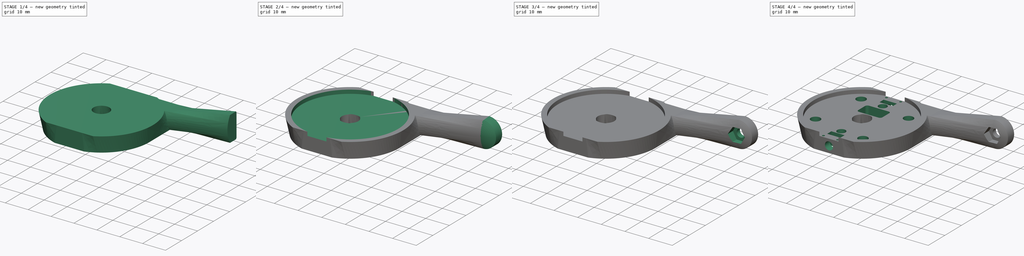
[diagram: build sequence overview — one tinted view per stage of 4, left to right]
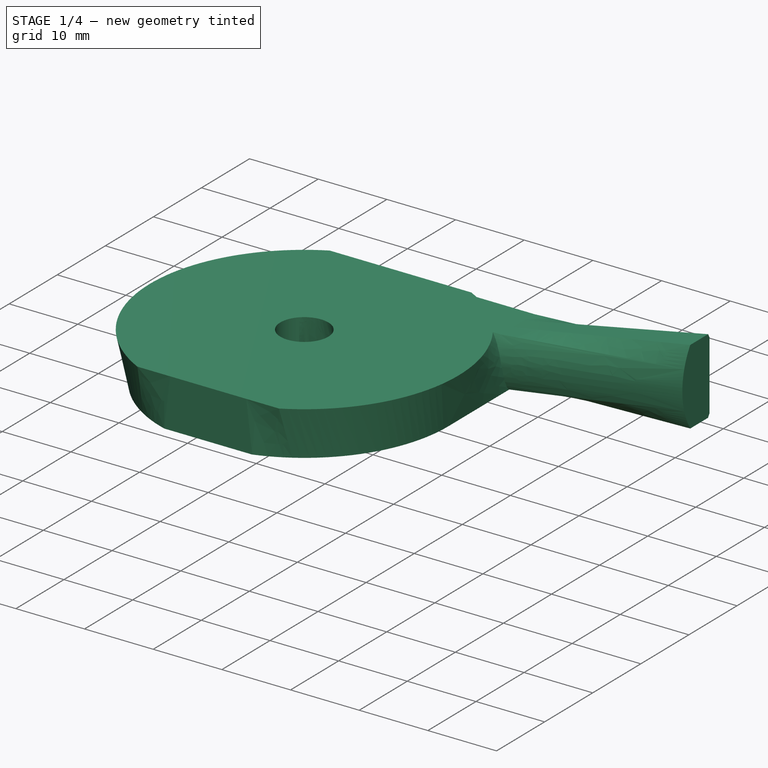
[diagram: stage 1 of 4 — iso view after this stage's code; geometry added in this stage tinted green]
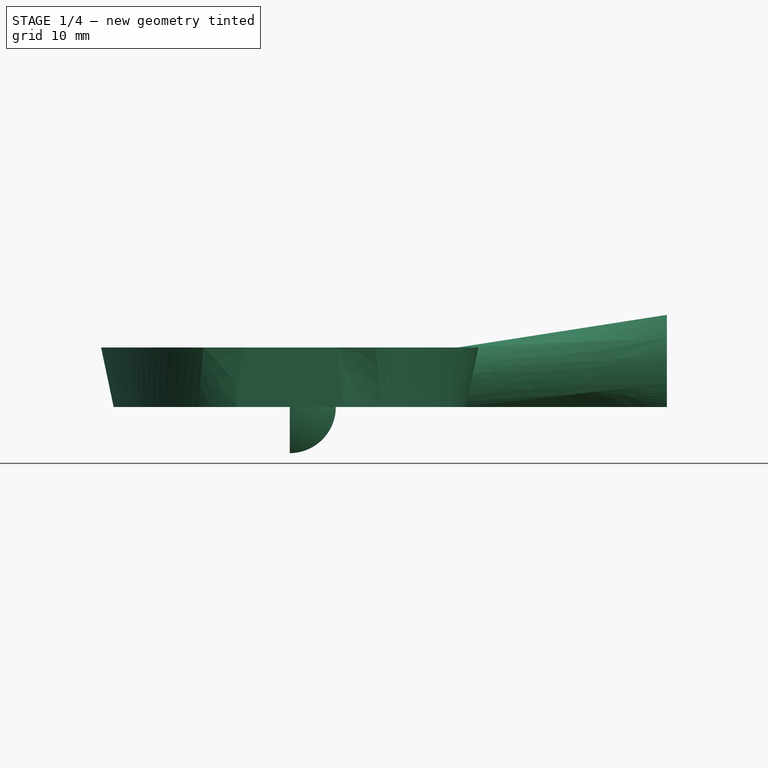
[diagram: stage 1 of 4 — front view after this stage's code; geometry added in this stage tinted green]
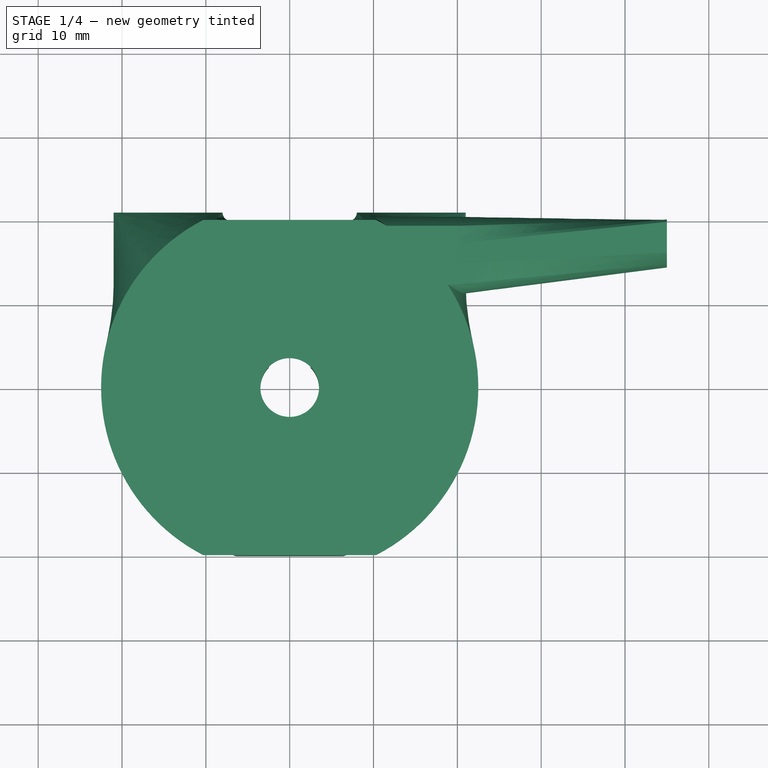
[diagram: stage 1 of 4 — top view after this stage's code; geometry added in this stage tinted green]
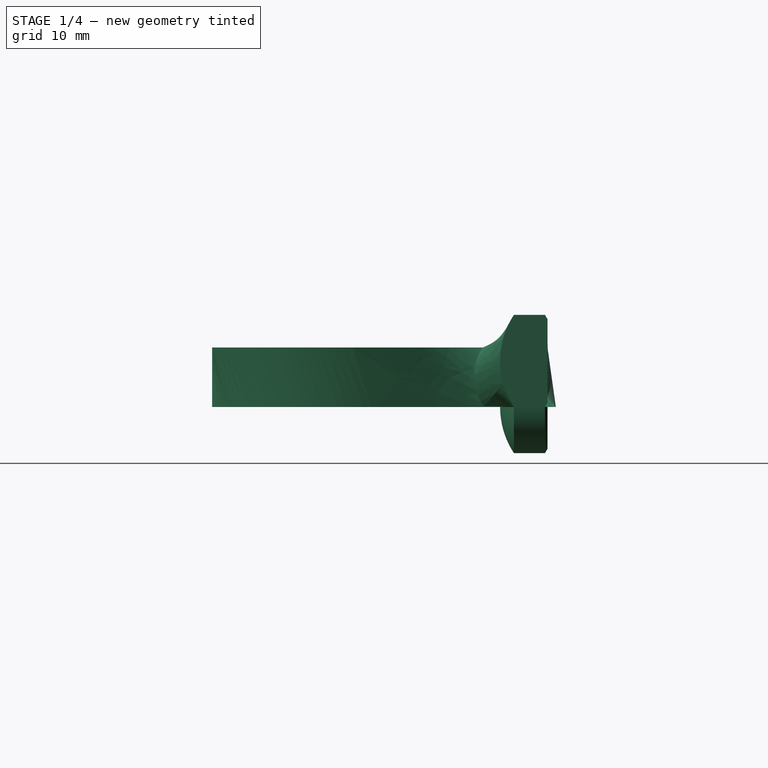
[diagram: stage 1 of 4 — right view after this stage's code; geometry added in this stage tinted green]
FCSTD DOCUMENT  (FreeCAD 0.18R16093 (Git))
Label: AnotherTryPCB
License: All rights reserved
LicenseURL: http://en.wikipedia.org/wiki/All_rights_reserved
objects: Sketcher::SketchObject×13, PartDesign::Pocket×8, PartDesign::Body×5, PartDesign::AdditiveLoft×2, PartDesign::Plane×1, PartDesign::Pad×1, PartDesign::Revolution×1, Part::MultiFuse×1, PartDesign::FeatureBase×1
note: 45 computed .brp shape members not serialized (recipe doc carries the construction recipe); baked Part::Feature solids carry a one-line shape summary decoded from their .brp

FEATURE [PartDesign::Plane] DatumPlane
  AttachmentOffset = pos=(0,0,7.1) rot=(0,0,1;0rad)
  Length = 53.5547
  MapMode = 5
  Placement = pos=(0,0,7.1) rot=(0,0,1;0rad)
  ResizeMode = 0
  Support = -> [XY_Plane]
  Width = 49.5876
FEATURE [Sketcher::SketchObject] Sketch001
  MapMode = 5
  Placement = pos=(0,0,7.1) rot=(0,0,1;0rad)
  Support = -> [DatumPlane]
  sketch-geometry (5):
    g0: LineSegment StartX=-10.3078 StartY=20 StartZ=0 EndX=10.3078 EndY=20 EndZ=0
    g1: ArcOfCircle CenterX=0 CenterY=0 CenterZ=0 NormalX=0 NormalY=0 NormalZ=1 AngleXU=0 Radius=22.5 StartAngle=2.04668 EndAngle=4.23651
    g2: ArcOfCircle CenterX=0 CenterY=0 CenterZ=0 NormalX=0 NormalY=0 NormalZ=1 AngleXU=0 Radius=22.5 StartAngle=5.18827 EndAngle=7.3781
    g3: LineSegment StartX=-10.3078 StartY=-20 StartZ=0 EndX=10.3078 EndY=-20 EndZ=0
    g4: Circle CenterX=0 CenterY=0 CenterZ=0 NormalX=0 NormalY=0 NormalZ=1 AngleXU=0 Radius=3.5
  constraints (14):
    c: Horizontal(g0)
    c: Coincident(g1,g-1)
    c: Coincident(g1,g0)
    c: Coincident(g2,g1)
    c: Coincident(g2,g0)
    c: Equal(g1,g2)
    c: Radius(g2) = 22.5
    c: DistanceY(g1,g0) = 20
    c: Coincident(g3,g1)
    c: Coincident(g3,g2)
    c: Horizontal(g3)
    c: DistanceY(g1,g1) = 20
    c: Coincident(g4,g1)
    c: Radius(g4) = 3.5
FEATURE [Sketcher::SketchObject] Sketch005
  MapMode = 5
  sketch-geometry (22):
    g0: LineSegment StartX=-7 StartY=20 StartZ=0 EndX=7 EndY=20 EndZ=0
    g1: LineSegment StartX=-6.40312 StartY=-20 StartZ=0 EndX=6.40312 EndY=-20 EndZ=0
    g2: LineSegment StartX=-2 StartY=4 StartZ=0 EndX=2 EndY=4 EndZ=0
    g3: LineSegment StartX=-2 StartY=-4 StartZ=0 EndX=2 EndY=-4 EndZ=0
    g4: ArcOfCircle CenterX=2 CenterY=-3.5 CenterZ=0 NormalX=0 NormalY=0 NormalZ=1 AngleXU=0 Radius=0.5 StartAngle=4.71239 EndAngle=6.28319
    g5: ArcOfCircle CenterX=-2 CenterY=-3.5 CenterZ=0 NormalX=0 NormalY=0 NormalZ=1 AngleXU=0 Radius=0.5 StartAngle=3.14159 EndAngle=4.71239
    g6: ArcOfCircle CenterX=-2 CenterY=3.5 CenterZ=0 NormalX=0 NormalY=0 NormalZ=1 AngleXU=0 Radius=0.5 StartAngle=1.5708 EndAngle=3.14159
    g7: ArcOfCircle CenterX=2 CenterY=3.5 CenterZ=0 NormalX=0 NormalY=0 NormalZ=1 AngleXU=0 Radius=0.5 StartAngle=3e-16 EndAngle=1.5708
    g8: LineSegment StartX=-2.5 StartY=3.5 StartZ=0 EndX=-2.5 EndY=2.44949 EndZ=0
    g9: LineSegment StartX=2.5 StartY=3.5 StartZ=0 EndX=2.5 EndY=2.44949 EndZ=0
    g10: LineSegment StartX=2.5 StartY=-3.5 StartZ=0 EndX=2.5 EndY=-2.44949 EndZ=0
    g11: LineSegment StartX=-2.5 StartY=-3.5 StartZ=0 EndX=-2.5 EndY=-2.44949 EndZ=0
    g12: ArcOfCircle CenterX=0 CenterY=0 CenterZ=0 NormalX=0 NormalY=0 NormalZ=1 AngleXU=0 Radius=3.5 StartAngle=2.3664 EndAngle=3.91679
    g13: ArcOfCircle CenterX=1e-16 CenterY=0 CenterZ=0 NormalX=0 NormalY=0 NormalZ=1 AngleXU=0 Radius=3.5 StartAngle=5.50799 EndAngle=7.05838
    g14: ArcOfCircle CenterX=-7 CenterY=21 CenterZ=0 NormalX=0 NormalY=0 NormalZ=1 AngleXU=0 Radius=1 StartAngle=3.14159 EndAngle=4.71239
    g15: LineSegment StartX=-8 StartY=21 StartZ=0 EndX=-21 EndY=21 EndZ=0
    g16: LineSegment StartX=-21 StartY=21 StartZ=0 EndX=-21 EndY=3.6e-15 EndZ=0
    g17: LineSegment StartX=8 StartY=21 StartZ=0 EndX=21 EndY=21 EndZ=0
    g18: LineSegment StartX=21 StartY=21 StartZ=0 EndX=21 EndY=0 EndZ=0
    g19: ArcOfCircle CenterX=0 CenterY=0 CenterZ=0 NormalX=0 NormalY=0 NormalZ=1 AngleXU=0 Radius=21 StartAngle=3.14159 EndAngle=4.40254
    g20: ArcOfCircle CenterX=0 CenterY=0 CenterZ=0 NormalX=0 NormalY=0 NormalZ=1 AngleXU=0 Radius=21 StartAngle=5.02223 EndAngle=6.28319
    g21: ArcOfCircle CenterX=7 CenterY=21 CenterZ=0 NormalX=0 NormalY=0 NormalZ=1 AngleXU=0 Radius=1 StartAngle=4.71239 EndAngle=6.28319
  constraints (59):
    c: Horizontal(g1)
    c: Tangent(g7,g2) = 1.5708
    c: Tangent(g4,g3) = -1.5708
    c: Tangent(g3,g5) = -1.5708
    c: Tangent(g2,g6) = 1.5708
    c: Equal(g7,g6)
    c: Equal(g6,g4)
    c: Equal(g4,g5)
    c: Radius(g7) = 0.5
    c: Symmetric(g2,g3,g-1)
    c: DistanceY(g3,g2) = 8
    c: Vertical(g8)
    c: Vertical(g10)
    c: DistanceX(g6,g7) = 5
    c: Coincident(g12,g8)
    c: Coincident(g13,g9)
    c: Coincident(g10,g13)
    c: Coincident(g11,g12)
    c: Equal(g12,g13)
    c: Radius(g12) = 3.5
    c: Tangent(g8,g6) = -1.5708
    c: Tangent(g9,g7) = 1.5708
    c: Tangent(g11,g5) = 1.5708
    c: Symmetric(g9,g10,g-1)
    c: Symmetric(g8,g11,g-1)
    c: Symmetric(g6,g7,g-2)
    c: Symmetric(g4,g5,g-2)
    c: Symmetric(g11,g10,g-2)
    c: Equal(g11,g10)
    c: Equal(g10,g9)
    c: Equal(g9,g8)
    c: DistanceX(g0,g0) = 14
    c: Symmetric(g0,g0,g-2)
    c: Radius(g14) = 1
    c: Coincident(g15,g14)
    c: Horizontal(g15)
    c: Coincident(g16,g15)
    c: PointOnObject(g16,g-1)
    c: Vertical(g16)
    c: Horizontal(g17)
    c: Coincident(g18,g17)
    c: PointOnObject(g18,g-1)
    c: Vertical(g18)
    c: Coincident(g19,g12)
    c: Coincident(g19,g16)
    c: Coincident(g19,g1)
    c: Coincident(g20,g12)
    c: Coincident(g20,g18)
    c: Coincident(g20,g1)
    c: Radius(g20) = 21
    c: Equal(g20,g19)
    c: Coincident(g12,g-1)
    c: DistanceY(g1,g12) = 20
    c: Perpendicular(g14,g15)
    c: Tangent(g14,g0) = -1.5708
    c: DistanceY(g16,g16) = 21
    c: Perpendicular(g21,g17) = 4.71239
    c: Tangent(g21,g0) = -1.5708
    c: Equal(g21,g14)
FEATURE [PartDesign::AdditiveLoft] AdditiveLoft
  Closed = false
  Placement = pos=(0,0,7.1) rot=(0,0,1;0rad)
  Profile = -> Sketch001
  Ruled = false
  Sections = -> [Sketch005]
FEATURE [PartDesign::Body] Body
  Group = -> [DatumPlane,Sketch001,Sketch005,AdditiveLoft]
  Origin = -> Origin
  Tip = -> AdditiveLoft
FEATURE [Sketcher::SketchObject] Sketch009
  MapMode = 5
  Placement = pos=(20,0,0) rot=(0.57735,0.57735,0.57735;2.0944rad)
  sketch-geometry (6):
    g0: LineSegment [constr] StartX=15.8 StartY=7.1 StartZ=0 EndX=15.8 EndY=0 EndZ=0
    g1: LineSegment [constr] StartX=14.3 StartY=3.55 StartZ=0 EndX=17.3 EndY=3.55 EndZ=0
    g2: LineSegment StartX=12.3 StartY=7.1 StartZ=0 EndX=19.3 EndY=7.1 EndZ=0
    g3: LineSegment StartX=12.3 StartY=-2.2e-15 StartZ=0 EndX=19.3 EndY=-2.2e-15 EndZ=0
    g4: ArcOfCircle CenterX=17.3 CenterY=3.55 CenterZ=0 NormalX=0 NormalY=0 NormalZ=1 AngleXU=0 Radius=6.13209 StartAngle=2.52419 EndAngle=3.759
    g5: ArcOfCircle CenterX=14.3 CenterY=3.55 CenterZ=0 NormalX=0 NormalY=0 NormalZ=1 AngleXU=0 Radius=6.13209 StartAngle=5.66578 EndAngle=6.90059
  constraints (18):
    c: Vertical(g0)
    c: Symmetric(g0,g0,g1)
    c: Symmetric(g1,g1,g0)
    c: DistanceY(g0,g0) = 7.1
    c: PointOnObject(g0,g-1)
    c: PointOnObject(g3,g-1)
    c: Horizontal(g3)
    c: PointOnObject(g0,g2)
    c: Coincident(g4,g1)
    c: Coincident(g4,g2)
    c: Coincident(g4,g3)
    c: Coincident(g5,g1)
    c: Coincident(g5,g2)
    c: Coincident(g5,g3)
    c: Symmetric(g2,g2,g0)
    c: DistanceX(g2,g2) = 7
    c: DistanceX(g-1,g0) = 15.8
    c: DistanceX(g5,g4) = 3
FEATURE [Sketcher::SketchObject] Sketch010
  MapMode = 5
  Placement = pos=(45,0,0) rot=(0.57735,0.57735,0.57735;2.0944rad)
  sketch-geometry (8):
    g0: LineSegment [constr] StartX=17.85 StartY=11 StartZ=0 EndX=17.85 EndY=0 EndZ=0
    g1: LineSegment [constr] StartX=11.3484 StartY=5.5 StartZ=0 EndX=24.3516 EndY=5.5 EndZ=0
    g2: LineSegment StartX=16 StartY=11 StartZ=0 EndX=19.7 EndY=11 EndZ=0
    g3: LineSegment StartX=16 StartY=1.8e-15 StartZ=0 EndX=19.7 EndY=-3.3e-15 EndZ=0
    g4: ArcOfCircle CenterX=24.3516 CenterY=5.5 CenterZ=0 NormalX=0 NormalY=0 NormalZ=1 AngleXU=0 Radius=10 StartAngle=2.55923 EndAngle=3.72396
    g5: LineSegment StartX=20 StartY=10.5 StartZ=0 EndX=20 EndY=0.5 EndZ=0
    g6: LineSegment StartX=19.7 StartY=11 StartZ=0 EndX=20 EndY=10.5 EndZ=0
    g7: LineSegment StartX=20 StartY=0.5 StartZ=0 EndX=19.7 EndY=-3.3e-15 EndZ=0
  constraints (22):
    c: Vertical(g0)
    c: Symmetric(g0,g0,g1)
    c: Symmetric(g1,g1,g0)
    c: DistanceY(g0,g0) = 11
    c: PointOnObject(g0,g-1)
    c: PointOnObject(g3,g-1)
    c: Coincident(g4,g1)
    c: Coincident(g4,g2)
    c: Coincident(g4,g3)
    c: Horizontal(g2)
    c: Radius(g4) = 10
    c: DistanceX(g-1,g5) = 20
    c: DistanceX(g2,g5) = 4
    c: Symmetric(g2,g2,g0)
    c: Coincident(g6,g2)
    c: Coincident(g6,g5)
    c: Coincident(g7,g5)
    c: Coincident(g7,g3)
    c: DistanceX(g2,g5) = 0.3
    c: DistanceY(g5,g2) = 0.5
    c: Symmetric(g5,g5,g1)
    c: Symmetric(g2,g3,g1)
FEATURE [PartDesign::AdditiveLoft] AdditiveLoft003
  Closed = false
  Placement = pos=(20,0,0) rot=(0.57735,0.57735,0.57735;2.0944rad)
  Profile = -> Sketch009
  Ruled = false
  Sections = -> [Sketch010]
FEATURE [PartDesign::Pad] Pad
  BaseFeature = -> AdditiveLoft003
  Length = 11
  Length2 = 100
  Placement = pos=(20,0,0) rot=(0.57735,0.57735,0.57735;2.0944rad)
  Profile = -> AdditiveLoft003 [Face1]
  Type = 0
FEATURE [PartDesign::Body] Body003
  Group = -> [Sketch009,Sketch010,AdditiveLoft003,Pad]
  Origin = -> Origin003
  Tip = -> Pad
FEATURE [Sketcher::SketchObject] Sketch012
  MapMode = 5
  Placement = pos=(0,0,0) rot=(0.57735,0.57735,0.57735;2.0944rad)
  sketch-geometry (5):
    g0: LineSegment StartX=20 StartY=0 StartZ=0 EndX=20 EndY=5 EndZ=0
    g1: LineSegment StartX=20 StartY=5 StartZ=0 EndX=19.7 EndY=5.5 EndZ=0
    g2: LineSegment StartX=19.7 StartY=5.5 StartZ=0 EndX=16 EndY=5.5 EndZ=0
    g3: ArcOfCircle CenterX=24.3516 CenterY=0 CenterZ=0 NormalX=0 NormalY=0 NormalZ=1 AngleXU=0 Radius=10 StartAngle=2.55923 EndAngle=3.14159
    g4: LineSegment StartX=14.3516 StartY=0 StartZ=0 EndX=20 EndY=0 EndZ=0
  constraints (16):
    c: PointOnObject(g0,g-1)
    c: Vertical(g0)
    c: Coincident(g1,g0)
    c: Coincident(g2,g1)
    c: Horizontal(g2)
    c: PointOnObject(g3,g-1)
    c: Coincident(g3,g2)
    c: PointOnObject(g3,g-1)
    c: DistanceY(g-1,g2) = 5.5
    c: DistanceY(g0,g1) = 0.5
    c: DistanceX(g1,g0) = 0.3
    c: DistanceX(g2,g0) = 4
    c: DistanceX(g-1,g0) = 20
    c: Radius(g3) = 10
    c: Coincident(g4,g3)
    c: Coincident(g4,g0)
FEATURE [PartDesign::Revolution] Revolution
  Angle = 180
  Axis = (1e-16,1,-1e-16)
  Base = (0,0,0)
  Placement = pos=(0,0,0) rot=(0.57735,0.57735,0.57735;2.0944rad)
  Profile = -> Sketch012
  ReferenceAxis = -> Y_Axis004
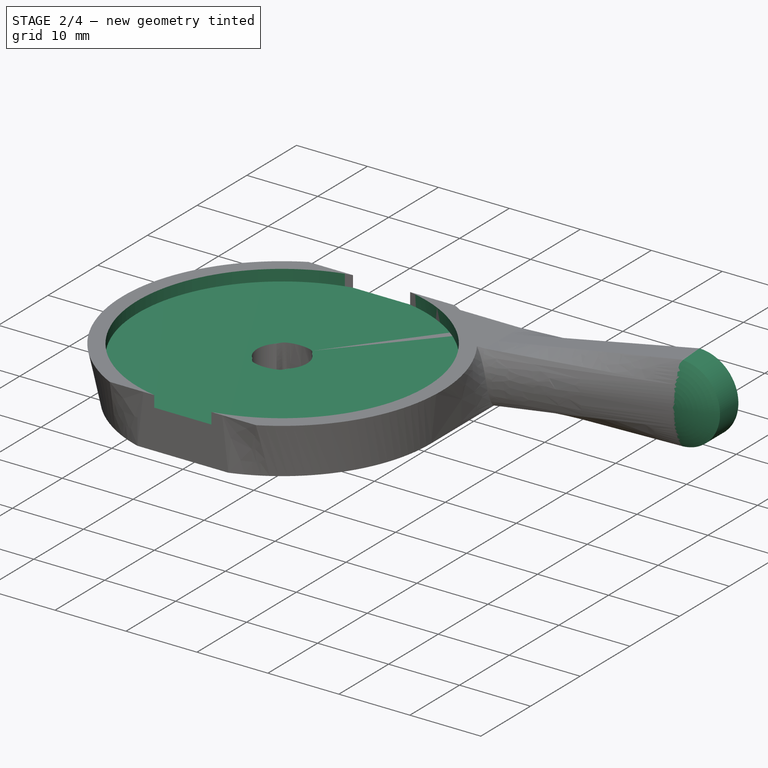
[diagram: stage 2 of 4 — iso view after this stage's code; geometry added in this stage tinted green]
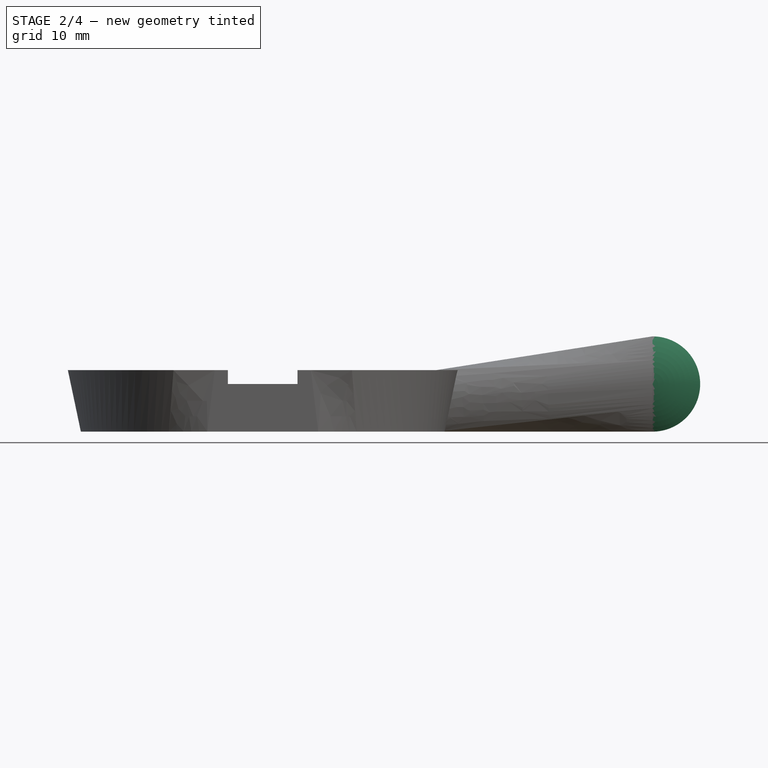
[diagram: stage 2 of 4 — front view after this stage's code; geometry added in this stage tinted green]
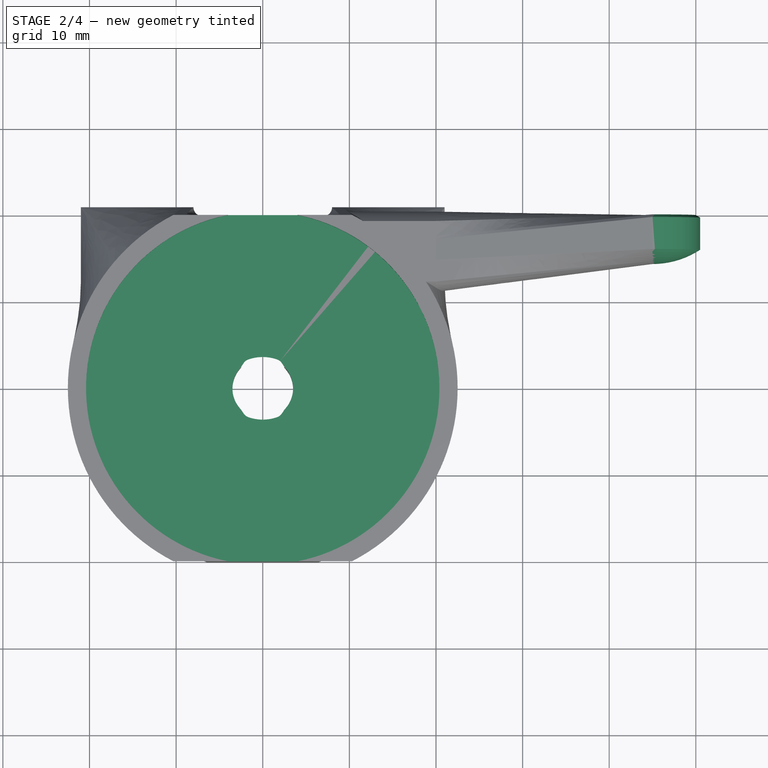
[diagram: stage 2 of 4 — top view after this stage's code; geometry added in this stage tinted green]
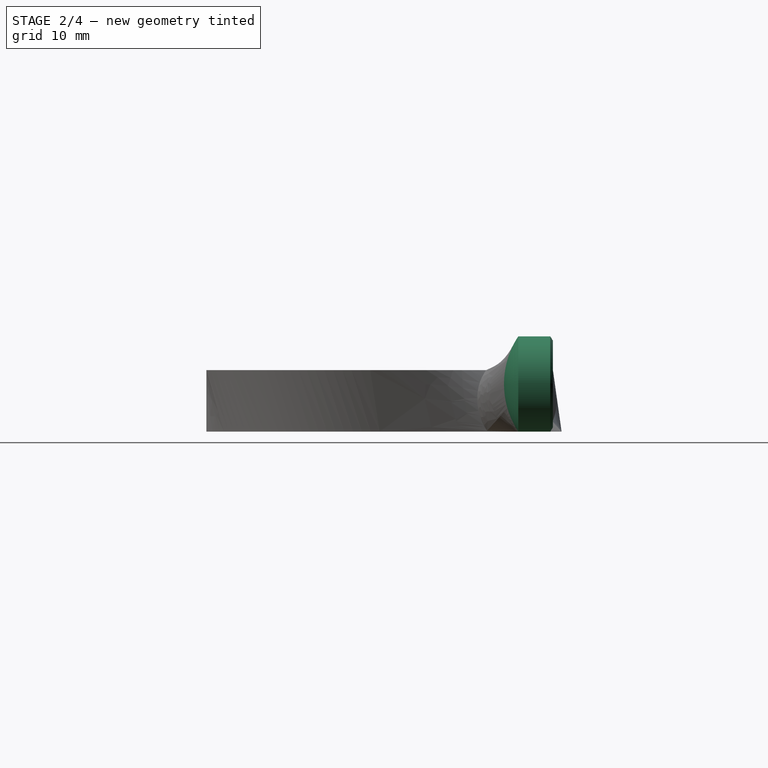
[diagram: stage 2 of 4 — right view after this stage's code; geometry added in this stage tinted green]
FEATURE [PartDesign::Body] Body004
  Group = -> [Sketch012,Revolution]
  Origin = -> Origin004
  Placement = pos=(45,0,5.5) rot=(0,0,1;0rad)
  Tip = -> Revolution
FEATURE [Part::MultiFuse] Fusion
  Shapes = -> [Body,Body003,Body004]
FEATURE [PartDesign::FeatureBase] BaseFeature
  BaseFeature = -> Fusion
FEATURE [Sketcher::SketchObject] Sketch
  MapMode = 5
  Placement = pos=(0,0,7.1) rot=(0,0,1;0rad)
  Support = -> [BaseFeature]
  sketch-geometry (1):
    g0: Circle CenterX=0 CenterY=0 CenterZ=0 NormalX=0 NormalY=0 NormalZ=1 AngleXU=0 Radius=20.4
  constraints (2):
    c: Coincident(g0,g-1)
    c: Radius(g0) = 20.4
FEATURE [PartDesign::Pocket] Pocket
  BaseFeature = -> BaseFeature
  Length = 1.6
  Length2 = 100
  Profile = -> Sketch
  Type = 0
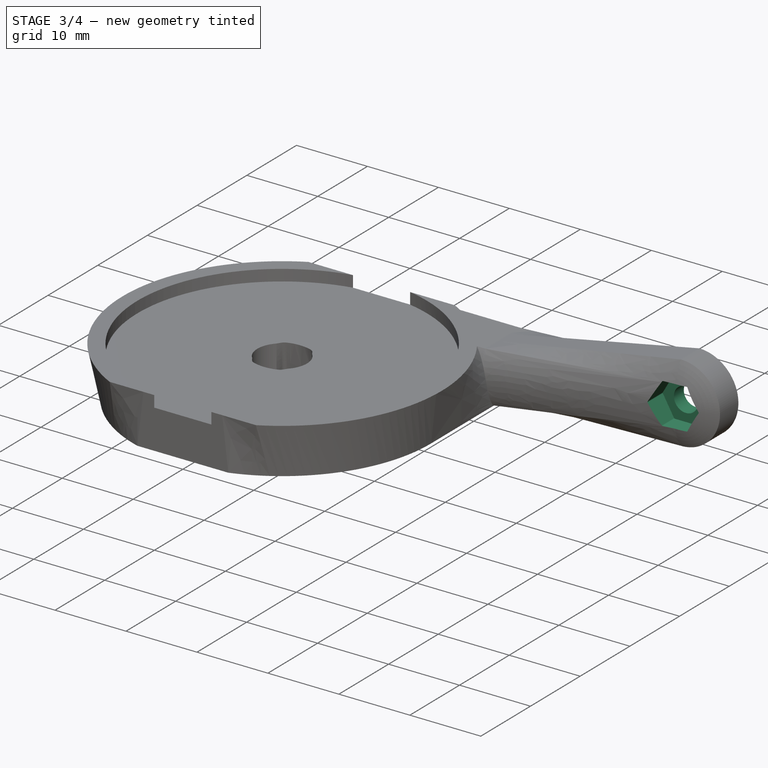
[diagram: stage 3 of 4 — iso view after this stage's code; geometry added in this stage tinted green]
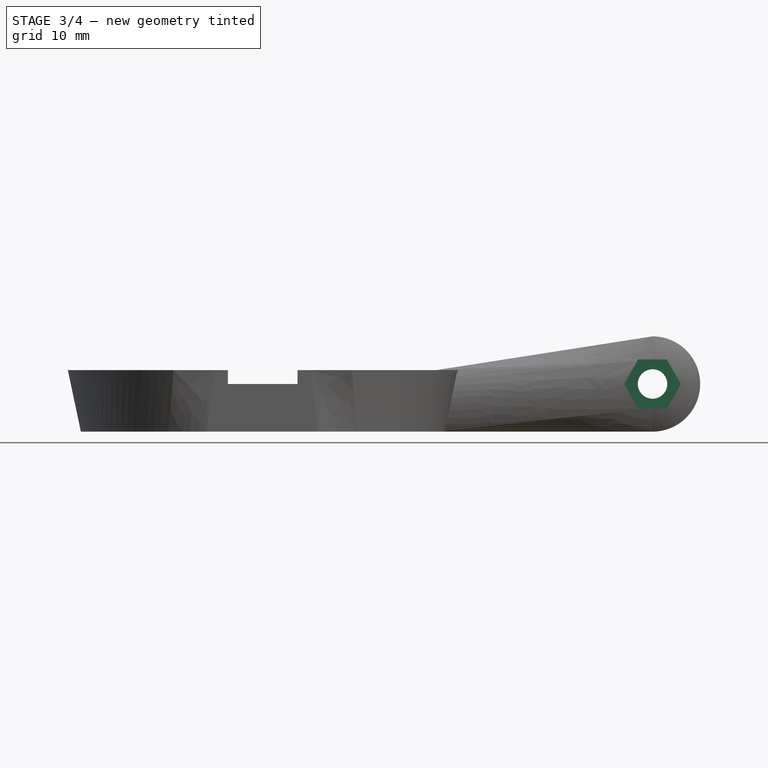
[diagram: stage 3 of 4 — front view after this stage's code; geometry added in this stage tinted green]
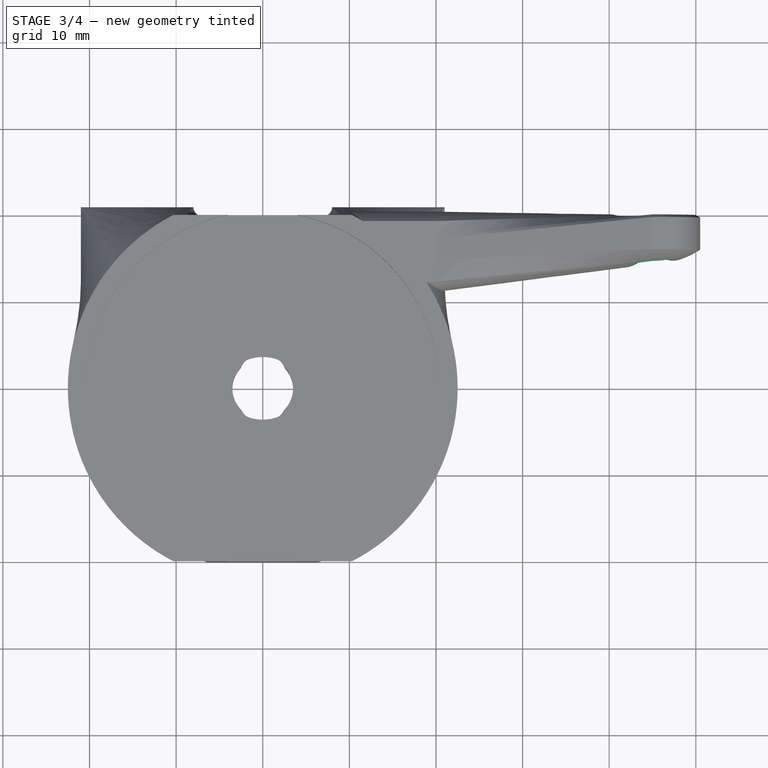
[diagram: stage 3 of 4 — top view after this stage's code; geometry added in this stage tinted green]
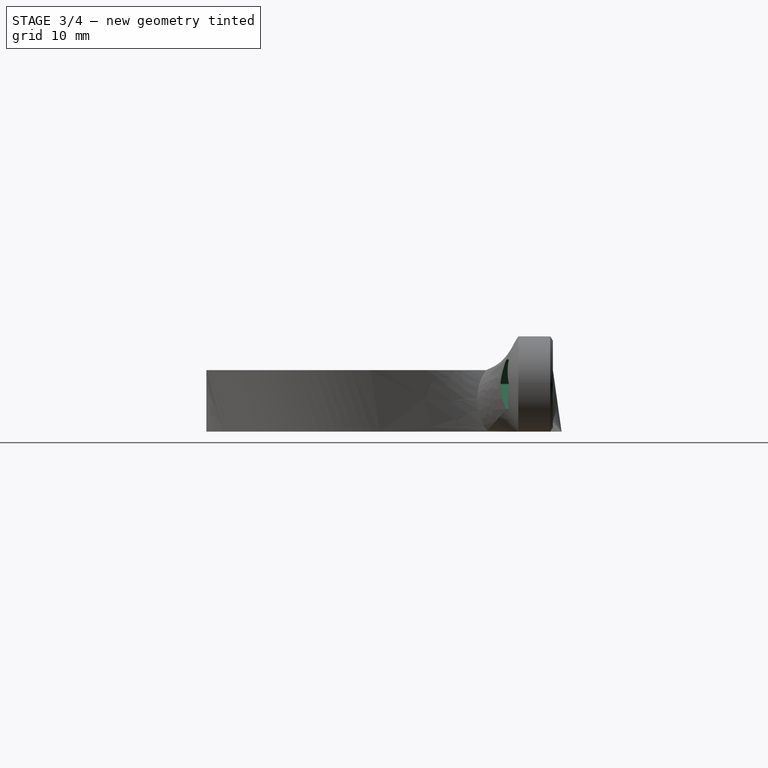
[diagram: stage 3 of 4 — right view after this stage's code; geometry added in this stage tinted green]
FEATURE [Sketcher::SketchObject] Sketch013
  MapMode = 5
  Placement = pos=(0,20,-2.2e-15) rot=(0,0.707107,0.707107;3.14159rad)
  Support = -> [Pocket]
  sketch-geometry (1):
    g0: Circle CenterX=-45 CenterY=5.5 CenterZ=0 NormalX=0 NormalY=0 NormalZ=1 AngleXU=0 Radius=4.6
  constraints (3):
    c: Diameter(g0) = 9.2
    c: DistanceY(g-1,g0) = 5.5
    c: DistanceX(g0,g-1) = 45
FEATURE [PartDesign::Pocket] Pocket001
  BaseFeature = -> Pocket
  Length = 2
  Length2 = 100
  Midplane = true
  Profile = -> Sketch013
  Type = 0
FEATURE [Sketcher::SketchObject] Sketch014
  MapMode = 5
  Placement = pos=(-4.9e-15,19,-8.5e-15) rot=(0,0.707107,0.707107;3.14159rad)
  Support = -> [Pocket001]
  sketch-geometry (1):
    g0: Circle CenterX=-45 CenterY=5.5 CenterZ=0 NormalX=0 NormalY=0 NormalZ=1 AngleXU=0 Radius=1.7
  constraints (3):
    c: Diameter(g0) = 3.4
    c: DistanceY(g-1,g0) = 5.5
    c: DistanceX(g0,g-1) = 45
FEATURE [PartDesign::Pocket] Pocket002
  BaseFeature = -> Pocket001
  Length = 5
  Length2 = 100
  Profile = -> Sketch014
  Type = 1
FEATURE [Sketcher::SketchObject] Sketch015
  MapMode = 5
  Placement = pos=(0,0,0) rot=(1,0,0;1.5708rad)
  Support = -> [XZ_Plane005]
  sketch-geometry (19):
    g0: LineSegment [constr] StartX=46.5877 StartY=8.25 StartZ=0 EndX=43.4123 EndY=8.25 EndZ=0
    g1: LineSegment [constr] StartX=43.4123 StartY=8.25 StartZ=0 EndX=41.8246 EndY=5.5 EndZ=0
    g2: LineSegment [constr] StartX=41.8246 StartY=5.5 StartZ=0 EndX=43.4123 EndY=2.75 EndZ=0
    g3: LineSegment [constr] StartX=43.4123 StartY=2.75 StartZ=0 EndX=46.5877 EndY=2.75 EndZ=0
    g4: LineSegment [constr] StartX=46.5877 StartY=2.75 StartZ=0 EndX=48.1754 EndY=5.5 EndZ=0
    g5: LineSegment [constr] StartX=48.1754 StartY=5.5 StartZ=0 EndX=46.5877 EndY=8.25 EndZ=0
    g6: Circle [constr] CenterX=45 CenterY=5.5 CenterZ=0 NormalX=0 NormalY=0 NormalZ=1 AngleXU=0 Radius=3.17543
    g7: ArcOfCircle CenterX=46.5877 CenterY=8.25 CenterZ=0 NormalX=0 NormalY=0 NormalZ=1 AngleXU=0 Radius=0.1 StartAngle=0.523599 EndAngle=1.5708
    g8: ArcOfCircle CenterX=43.4123 CenterY=8.25 CenterZ=0 NormalX=0 NormalY=0 NormalZ=1 AngleXU=0 Radius=0.1 StartAngle=1.5708 EndAngle=2.61799
    g9: ArcOfCircle CenterX=48.1754 CenterY=5.5 CenterZ=0 NormalX=0 NormalY=0 NormalZ=1 AngleXU=0 Radius=0.1 StartAngle=5.75959 EndAngle=6.80678
    g10: ArcOfCircle CenterX=46.5877 CenterY=2.75 CenterZ=0 NormalX=0 NormalY=0 NormalZ=1 AngleXU=0 Radius=0.1 StartAngle=4.71239 EndAngle=5.75959
    g11: ArcOfCircle CenterX=43.4123 CenterY=2.75 CenterZ=0 NormalX=0 NormalY=0 NormalZ=1 AngleXU=0 Radius=0.1 StartAngle=3.66519 EndAngle=4.71239
    g12: ArcOfCircle CenterX=41.8246 CenterY=5.5 CenterZ=0 NormalX=0 NormalY=0 NormalZ=1 AngleXU=0 Radius=0.1 StartAngle=2.61799 EndAngle=3.66519
    g13: LineSegment StartX=41.738 StartY=5.55 StartZ=0 EndX=43.3257 EndY=8.3 EndZ=0
    g14: LineSegment StartX=43.4123 StartY=8.35 StartZ=0 EndX=46.5877 EndY=8.35 EndZ=0
    g15: LineSegment StartX=46.6743 StartY=8.3 StartZ=0 EndX=48.262 EndY=5.55 EndZ=0
    g16: LineSegment StartX=48.262 StartY=5.45 StartZ=0 EndX=46.6743 EndY=2.7 EndZ=0
    g17: LineSegment StartX=46.5877 StartY=2.65 StartZ=0 EndX=43.4123 EndY=2.65 EndZ=0
    g18: LineSegment StartX=43.3257 StartY=2.7 StartZ=0 EndX=41.738 EndY=5.45 EndZ=0
  constraints (41):
    c: Coincident(g0,g1)
    c: Coincident(g1,g2)
    c: Coincident(g2,g3)
    c: Coincident(g3,g4)
    c: Coincident(g4,g5)
    c: Coincident(g5,g0)
    c: Equal(g0, g1-g5) x5
    c: PointOnObject(g0,g6)
    c: PointOnObject(g1,g6)
    c: PointOnObject(g2,g6)
    c: PointOnObject(g3,g6)
    c: PointOnObject(g4,g6)
    c: PointOnObject(g5,g6)
    c: Horizontal(g0)
    c: DistanceX(g-1,g6) = 45
    c: DistanceY(g-1,g6) = 5.5
    c: DistanceY(g2,g0) = 5.5
    c: Coincident(g7,g0)
    c: Coincident(g8,g0)
    c: Coincident(g9,g4)
    c: Coincident(g10,g3)
    c: Coincident(g12,g1)
    c: Radius(g12) = 0.1
    c: Equal(g12,g8)
    c: Equal(g12,g7)
    c: Equal(g12,g9)
    c: Equal(g12,g10)
    c: Equal(g12,g11)
    c: Tangent(g18,g12) = 1.5708
    c: Tangent(g13,g12) = 1.5708
    c: Tangent(g13,g8) = 1.5708
    c: Tangent(g14,g8) = 1.5708
    c: Tangent(g14,g7) = 1.5708
    c: Tangent(g7,g15) = 1.5708
    c: Tangent(g16,g9) = 1.5708
    c: Tangent(g16,g10) = 1.5708
    c: Tangent(g17,g10) = 1.5708
    c: Tangent(g17,g11) = 1.5708
    c: Tangent(g18,g11) = 1.5708
    c: Tangent(g15,g9) = 1.5708
    c: Coincident(g11,g2)
FEATURE [PartDesign::Pocket] Pocket003
  BaseFeature = -> Pocket002
  Length = 17
  Length2 = 100
  Profile = -> Sketch015
  Type = 0
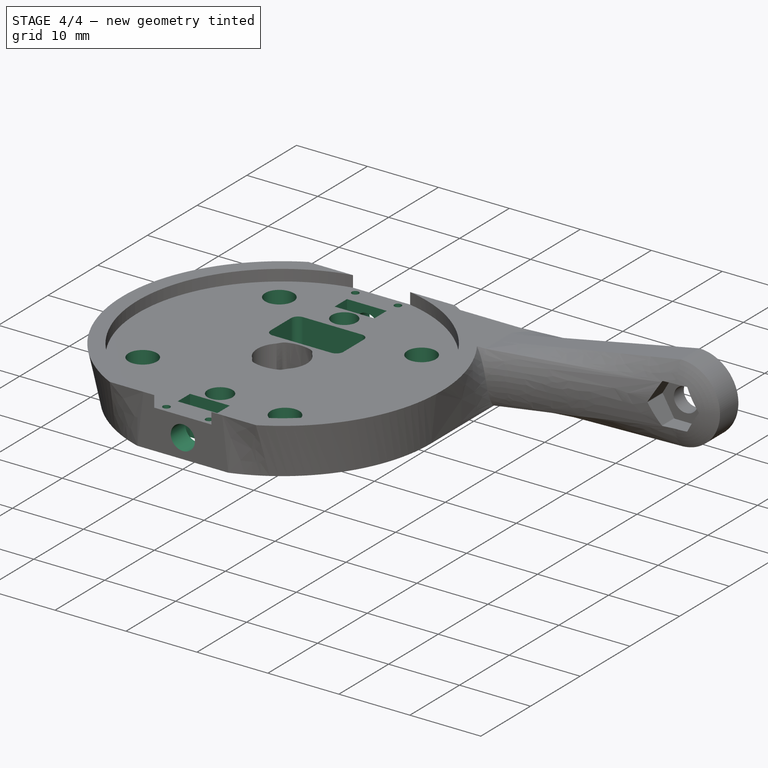
[diagram: stage 4 of 4 — iso view after this stage's code; geometry added in this stage tinted green]
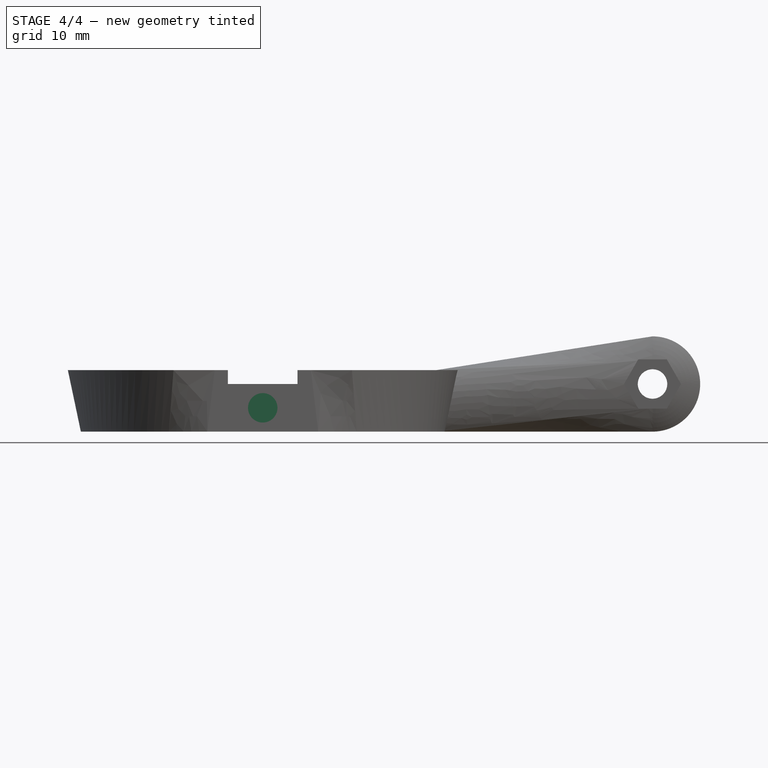
[diagram: stage 4 of 4 — front view after this stage's code; geometry added in this stage tinted green]
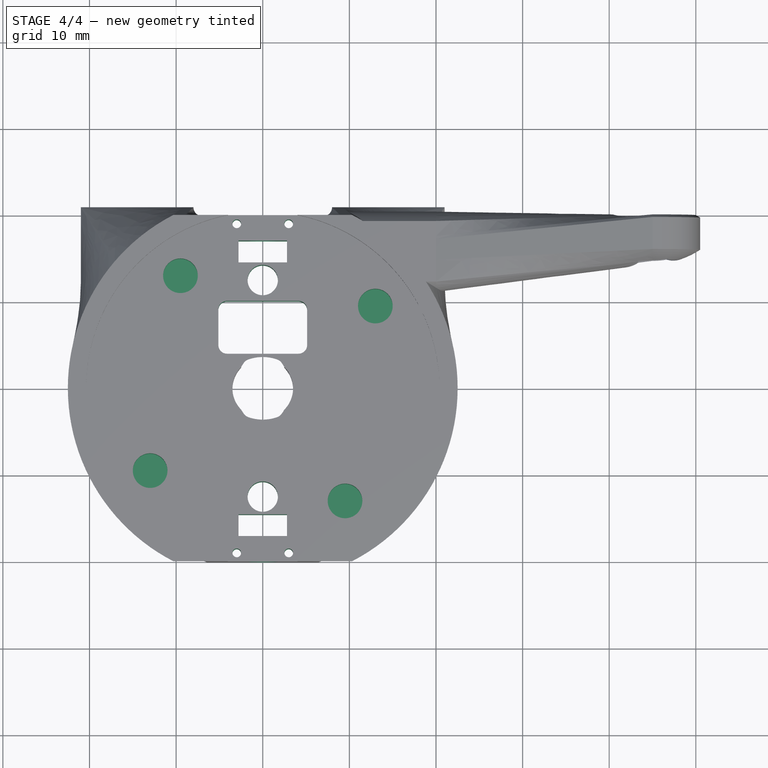
[diagram: stage 4 of 4 — top view after this stage's code; geometry added in this stage tinted green]
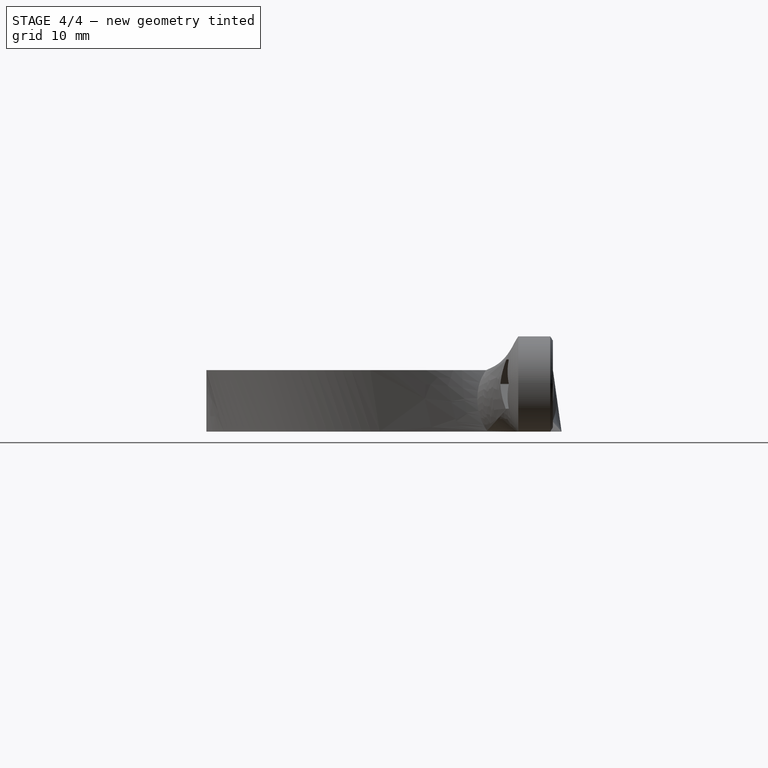
[diagram: stage 4 of 4 — right view after this stage's code; geometry added in this stage tinted green]
FEATURE [Sketcher::SketchObject] Sketch016
  MapMode = 5
  sketch-geometry (26):
    g0: LineSegment [constr] StartX=-4.125 StartY=9.1 StartZ=0 EndX=4.125 EndY=9.1 EndZ=0
    g1: LineSegment [constr] StartX=4.125 StartY=9.1 StartZ=0 EndX=4.125 EndY=5 EndZ=0
    g2: LineSegment [constr] StartX=4.125 StartY=5 StartZ=0 EndX=-4.125 EndY=5 EndZ=0
    g3: LineSegment [constr] StartX=-4.125 StartY=5 StartZ=0 EndX=-4.125 EndY=9.1 EndZ=0
    g4: ArcOfCircle CenterX=-4.125 CenterY=9.1 CenterZ=0 NormalX=0 NormalY=0 NormalZ=1 AngleXU=0 Radius=1 StartAngle=1.5708 EndAngle=3.14159
    g5: ArcOfCircle CenterX=4.125 CenterY=9.1 CenterZ=0 NormalX=0 NormalY=0 NormalZ=1 AngleXU=0 Radius=1 StartAngle=7e-16 EndAngle=1.5708
    g6: ArcOfCircle CenterX=4.125 CenterY=5 CenterZ=0 NormalX=0 NormalY=0 NormalZ=1 AngleXU=0 Radius=1 StartAngle=4.71239 EndAngle=6.28319
    g7: ArcOfCircle CenterX=-4.125 CenterY=5 CenterZ=0 NormalX=0 NormalY=0 NormalZ=1 AngleXU=0 Radius=1 StartAngle=3.14159 EndAngle=4.71239
    g8: LineSegment StartX=-5.125 StartY=9.1 StartZ=0 EndX=-5.125 EndY=5 EndZ=0
    g9: LineSegment StartX=-4.125 StartY=4 StartZ=0 EndX=4.125 EndY=4 EndZ=0
    g10: LineSegment StartX=5.125 StartY=5 StartZ=0 EndX=5.125 EndY=9.1 EndZ=0
    g11: LineSegment StartX=4.125 StartY=10.1 StartZ=0 EndX=-4.125 EndY=10.1 EndZ=0
    g12: Circle CenterX=0 CenterY=12.5 CenterZ=0 NormalX=0 NormalY=0 NormalZ=1 AngleXU=0 Radius=1.75
    g13: Circle CenterX=0 CenterY=-12.5 CenterZ=0 NormalX=0 NormalY=0 NormalZ=1 AngleXU=0 Radius=1.75
    g14: LineSegment StartX=-2.8 StartY=17.05 StartZ=0 EndX=2.8 EndY=17.05 EndZ=0
    g15: LineSegment StartX=2.8 StartY=17.05 StartZ=0 EndX=2.8 EndY=14.55 EndZ=0
    g16: LineSegment StartX=2.8 StartY=14.55 StartZ=0 EndX=-2.8 EndY=14.55 EndZ=0
    g17: LineSegment StartX=-2.8 StartY=14.55 StartZ=0 EndX=-2.8 EndY=17.05 EndZ=0
    g18: LineSegment StartX=-2.8 StartY=-14.55 StartZ=0 EndX=2.8 EndY=-14.55 EndZ=0
    g19: LineSegment StartX=2.8 StartY=-14.55 StartZ=0 EndX=2.8 EndY=-17.05 EndZ=0
    g20: LineSegment StartX=2.8 StartY=-17.05 StartZ=0 EndX=-2.8 EndY=-17.05 EndZ=0
    g21: LineSegment StartX=-2.8 StartY=-17.05 StartZ=0 EndX=-2.8 EndY=-14.55 EndZ=0
    g22: Circle CenterX=-3 CenterY=19 CenterZ=0 NormalX=0 NormalY=0 NormalZ=1 AngleXU=0 Radius=0.5
    g23: Circle CenterX=3 CenterY=19 CenterZ=0 NormalX=0 NormalY=0 NormalZ=1 AngleXU=0 Radius=0.5
    g24: Circle CenterX=-3 CenterY=-19 CenterZ=0 NormalX=0 NormalY=0 NormalZ=1 AngleXU=0 Radius=0.5
    g25: Circle CenterX=3 CenterY=-19 CenterZ=0 NormalX=0 NormalY=0 NormalZ=1 AngleXU=0 Radius=0.5
  constraints (62):
    c: Coincident(g0,g1)
    c: Coincident(g1,g2)
    c: Coincident(g2,g3)
    c: Coincident(g3,g0)
    c: Horizontal(g2)
    c: Vertical(g1)
    c: Vertical(g3)
    c: Symmetric(g0,g0,g-2)
    c: DistanceX(g2,g1) = 8.25
    c: DistanceY(g-1,g2) = 5
    c: DistanceY(g-1,g0) = 9.1
    c: Coincident(g4,g0)
    c: Coincident(g5,g0)
    c: Coincident(g6,g1)
    c: Coincident(g7,g2)
    c: Tangent(g11,g5) = -1.5708
    c: Tangent(g10,g5) = -1.5708
    c: Tangent(g8,g4) = -1.5708
    c: Tangent(g7,g8) = -1.5708
    c: Tangent(g6,g9) = -1.5708
    c: Tangent(g10,g6) = -1.5708
    c: Tangent(g11,g4) = -1.5708
    c: Tangent(g9,g7) = -1.5708
    c: Radius(g4) = 1
    c: Equal(g4,g7)
    c: Equal(g4,g6)
    c: Equal(g4,g5)
    c: PointOnObject(g13,g-2)
    c: Diameter(g13) = 3.5
    c: Equal(g13,g12)
    c: Symmetric(g13,g12,g-1)
    c: DistanceY(g13,g12) = 25
    c: Coincident(g14,g15)
    c: Coincident(g15,g16)
    c: Coincident(g16,g17)
    c: Coincident(g17,g14)
    c: Horizontal(g16)
    c: Vertical(g17)
    c: Symmetric(g14,g14,g-2)
    c: DistanceX(g14,g14) = 5.6
    c: DistanceY(g15,g14) = 2.5
    c: Coincident(g18,g19)
    c: Coincident(g19,g20)
    c: Coincident(g20,g21)
    c: Coincident(g21,g18)
    c: Horizontal(g20)
    c: Vertical(g19)
    c: Vertical(g21)
    c: Symmetric(g18,g18,g-2)
    c: Equal(g18,g14)
    c: Equal(g19,g15)
    c: Symmetric(g15,g18,g-1)
    c: DistanceY(g-1,g15) = 14.55
    c: Symmetric(g25,g24,g-2)
    c: Symmetric(g23,g22,g-2)
    c: Symmetric(g23,g24,g-1)
    c: Diameter(g22) = 1
    c: Equal(g22,g23)
    c: Equal(g22,g25)
    c: Equal(g22,g24)
    c: DistanceY(g-1,g23) = 19
    c: DistanceX(g22,g23) = 6
FEATURE [PartDesign::Pocket] Pocket004
  BaseFeature = -> Pocket003
  Length = 5
  Length2 = 100
  Midplane = true
  Profile = -> Sketch016
  Type = 1
FEATURE [PartDesign::Body] Body006
  Origin = -> Origin006
FEATURE [Sketcher::SketchObject] Sketch017
  MapMode = 5
  Placement = pos=(0,20,0) rot=(-1,0,0;4.71239rad)
  sketch-geometry (1):
    g0: Circle CenterX=0 CenterY=2.75 CenterZ=0 NormalX=0 NormalY=0 NormalZ=1 AngleXU=0 Radius=1.7
  constraints (3):
    c: PointOnObject(g0,g-2)
    c: Diameter(g0) = 3.4
    c: DistanceY(g-1,g0) = 2.75
FEATURE [PartDesign::Pocket] Pocket005
  BaseFeature = -> Pocket004
  Length = 5
  Length2 = 100
  Profile = -> Sketch017
  Reversed = true
  Type = 0
FEATURE [Sketcher::SketchObject] Sketch018
  MapMode = 5
  Placement = pos=(0,-20,0) rot=(-1,0,0;4.71239rad)
  sketch-geometry (8):
    g0: Circle CenterX=0 CenterY=2.75 CenterZ=0 NormalX=0 NormalY=0 NormalZ=1 AngleXU=0 Radius=1.7
    g1: LineSegment [constr] StartX=1.58771 StartY=3.17e-14 StartZ=0 EndX=3.17543 EndY=2.75 EndZ=0
    g2: LineSegment [constr] StartX=3.17543 StartY=2.75 StartZ=0 EndX=1.58771 EndY=5.5 EndZ=0
    g3: LineSegment [constr] StartX=1.58771 StartY=5.5 StartZ=0 EndX=-1.58771 EndY=5.5 EndZ=0
    g4: LineSegment [constr] StartX=-1.58771 StartY=5.5 StartZ=0 EndX=-3.17543 EndY=2.75 EndZ=0
    g5: LineSegment [constr] StartX=-3.17543 StartY=2.75 StartZ=0 EndX=-1.58771 EndY=0 EndZ=0
    g6: LineSegment [constr] StartX=-1.58771 StartY=0 StartZ=0 EndX=1.58771 EndY=3.17e-14 EndZ=0
    g7: Circle [constr] CenterX=0 CenterY=2.75 CenterZ=0 NormalX=0 NormalY=0 NormalZ=1 AngleXU=0 Radius=3.17543
  constraints (19):
    c: PointOnObject(g0,g-2)
    c: Diameter(g0) = 3.4
    c: Coincident(g1,g2)
    c: Coincident(g2,g3)
    c: Coincident(g3,g4)
    c: Coincident(g4,g5)
    c: Coincident(g5,g6)
    c: Coincident(g6,g1)
    c: Equal(g1, g2-g6) x5
    c: PointOnObject(g1,g7)
    c: PointOnObject(g2,g7)
    c: PointOnObject(g3,g7)
    c: PointOnObject(g4,g7)
    c: PointOnObject(g5,g7)
    c: PointOnObject(g6,g7)
    c: Horizontal(g3)
    c: DistanceY(g5,g3) = 5.5
    c: Coincident(g7,g0)
    c: DistanceY(g-1,g2) = 5.5
FEATURE [PartDesign::Pocket] Pocket006
  BaseFeature = -> Pocket005
  Length = 5
  Length2 = 100
  Profile = -> Sketch018
  Type = 0
FEATURE [Sketcher::SketchObject] Sketch019
  MapMode = 5
  Placement = pos=(0,0,5.5) rot=(0,0,1;0rad)
  sketch-geometry (4):
    g0: Circle CenterX=-9.5 CenterY=13 CenterZ=0 NormalX=0 NormalY=0 NormalZ=1 AngleXU=0 Radius=2
    g1: Circle CenterX=13 CenterY=9.5 CenterZ=0 NormalX=0 NormalY=0 NormalZ=1 AngleXU=0 Radius=2
    g2: Circle CenterX=-13 CenterY=-9.5 CenterZ=0 NormalX=0 NormalY=0 NormalZ=1 AngleXU=0 Radius=2
    g3: Circle CenterX=9.5 CenterY=-13 CenterZ=0 NormalX=0 NormalY=0 NormalZ=1 AngleXU=0 Radius=2
  constraints (12):
    c: Radius(g0) = 2
    c: Equal(g0,g1)
    c: Equal(g0,g2)
    c: DistanceY(g2,g-1) = 9.5
    c: DistanceX(g2,g-1) = 13
    c: DistanceX(g0,g-1) = 9.5
    c: DistanceY(g-1,g0) = 13
    c: DistanceX(g-1,g1) = 13
    c: DistanceY(g-1,g1) = 9.5
    c: Equal(g3,g1)
    c: DistanceX(g-1,g3) = 9.5
    c: DistanceY(g3,g-1) = 13
FEATURE [PartDesign::Pocket] Pocket007
  BaseFeature = -> Pocket006
  Length = 3
  Length2 = 100
  Profile = -> Sketch019
  Type = 0
FEATURE [PartDesign::Body] Body005
  BaseFeature = -> Fusion
  Group = -> [BaseFeature,Sketch,Pocket,Sketch013,Pocket001,Sketch014,Pocket002,Sketch015,Pocket003,Sketch016,Pocket004,Sketch017,Pocket005,Sketch018,Pocket006,Sketch019,Pocket007]
  Origin = -> Origin005
  Tip = -> Pocket007
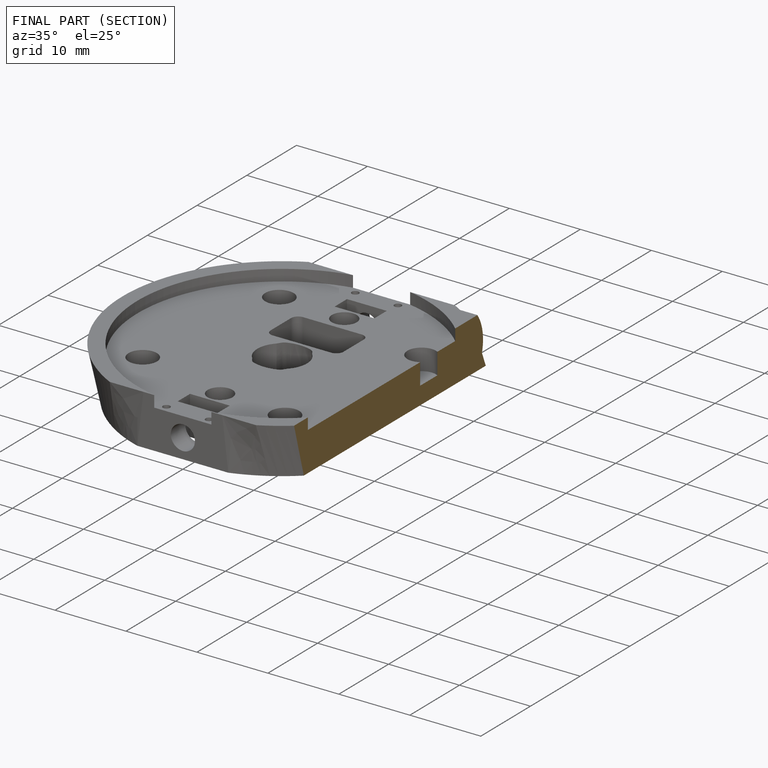
[diagram: finished part — half-section view (interior)]
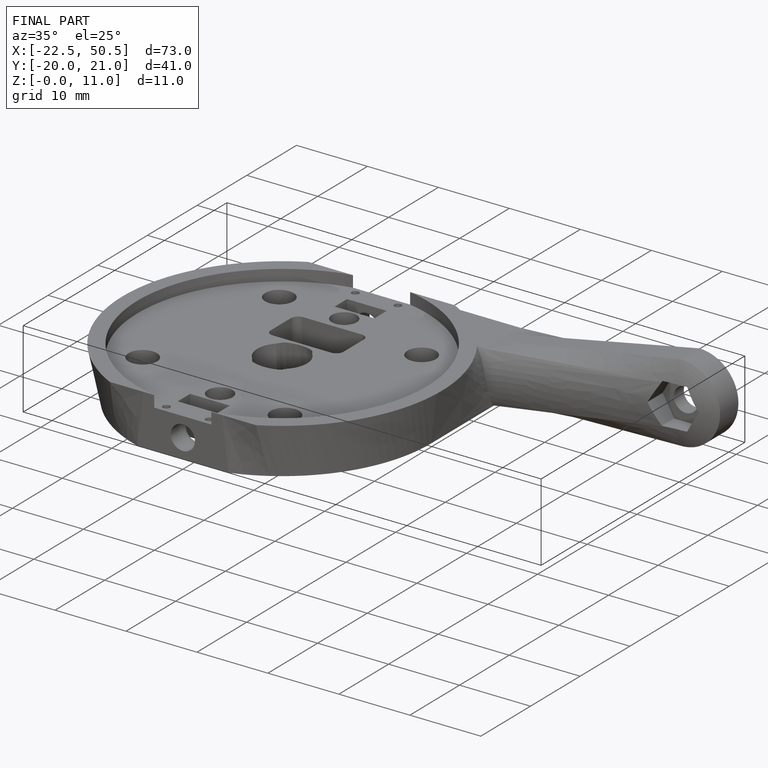
[diagram: finished part — iso view with bounding-box wireframe]
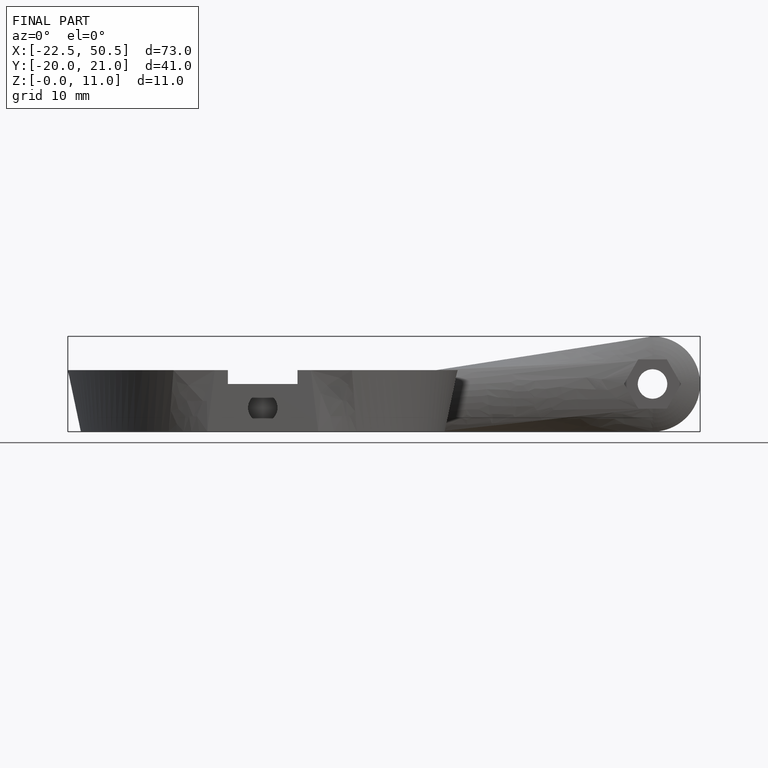
[diagram: finished part — front view with bounding-box wireframe]
